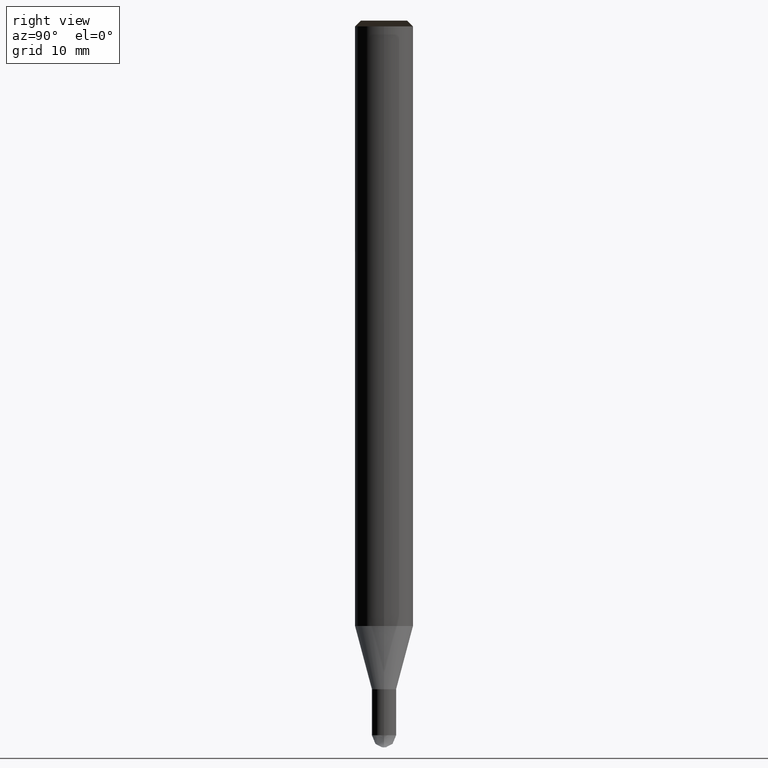
[diagram: clean part render]
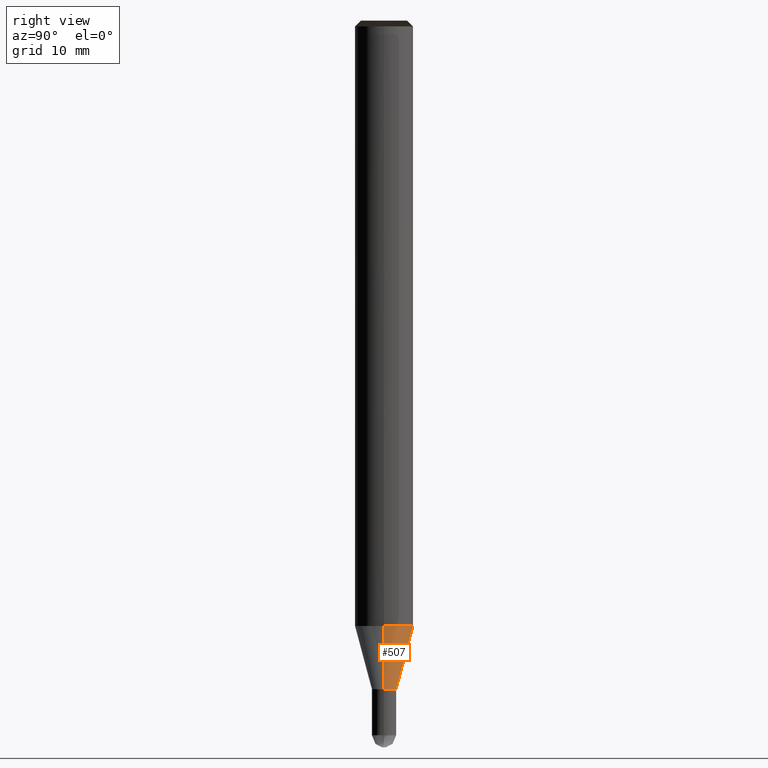
[diagram: same view with one face highlighted and labeled with its STEP entity id]
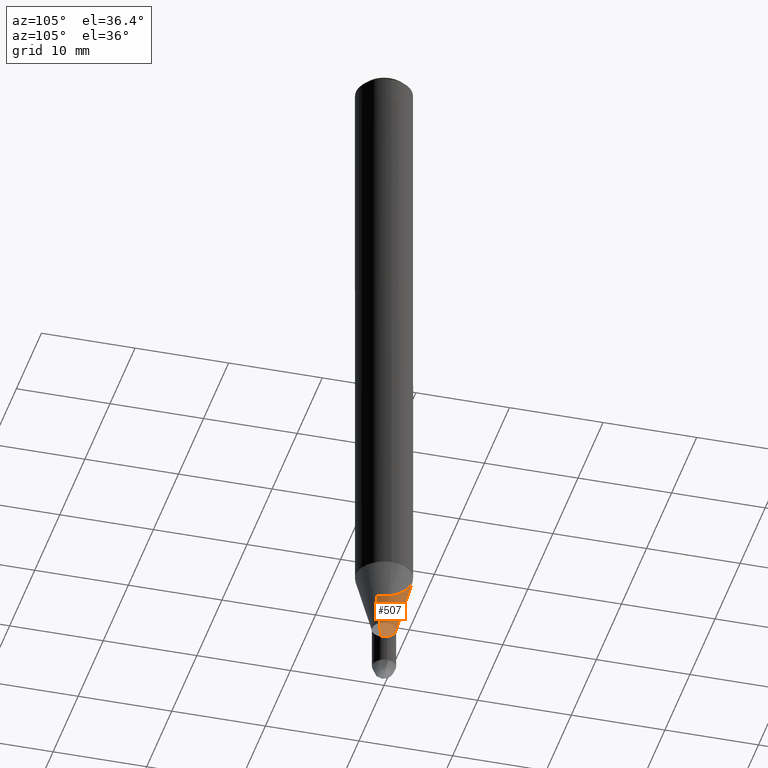
[diagram: same view with one face highlighted and labeled with its STEP entity id]
A machine part, right view. The second image highlights one B-rep face of the part: STEP entity #507.
A second angle (auxiliary view) of the same face is appended — the face is thin or edge-on in the first view.
In plain terms, the highlighted face is a freeform B-spline surface patch.
Its self-contained STEP definition (entity closure, byte-faithful):
#306=CARTESIAN_POINT('',(1.25,0.0,-6.531088913246));
#307=CARTESIAN_POINT('',(1.25,1.25,-6.531088913246));
#308=CARTESIAN_POINT('',(0.0,1.25,-6.531088913246));
#309=CARTESIAN_POINT('',(-1.25,1.25,-6.531088913246));
#310=CARTESIAN_POINT('',(-1.25,0.0,-6.531088913246));
#311=CARTESIAN_POINT('',(3.0,0.0,0.0));
#312=CARTESIAN_POINT('',(3.0,3.0,0.0));
#313=CARTESIAN_POINT('',(0.0,3.0,0.0));
#314=CARTESIAN_POINT('',(-3.0,3.0,0.0));
#315=CARTESIAN_POINT('',(-3.0,0.0,0.0));
#488=(
BOUNDED_SURFACE()
B_SPLINE_SURFACE(1,2,(
(#306,#307,#308,#309,#310),
(#311,#312,#313,#314,#315)
), .UNSPECIFIED.,.F.,.F.,.F.)
B_SPLINE_SURFACE_WITH_KNOTS((2,2),(3,2,3),(
0.0,1.0),(
0.0,0.5,1.0), .UNSPECIFIED.)
GEOMETRIC_REPRESENTATION_ITEM()
RATIONAL_B_SPLINE_SURFACE(((1.0,0.707106781187,1.0,0.707106781187,1.0),
(1.0,0.707106781187,1.0,0.707106781187,1.0)
))
REPRESENTATION_ITEM('')
SURFACE()
);
#489=(
BOUNDED_CURVE()
B_SPLINE_CURVE(2,(#311,#312,#313,#314,#315),.UNSPECIFIED.,.F.,.F.)
B_SPLINE_CURVE_WITH_KNOTS((3,2,3),
(0.0,0.5,1.0),.UNSPECIFIED.)
CURVE()
GEOMETRIC_REPRESENTATION_ITEM()
RATIONAL_B_SPLINE_CURVE((1.0,0.707106781187,1.0,0.707106781187,1.0))
REPRESENTATION_ITEM('')
);
#490=(
BOUNDED_CURVE()
B_SPLINE_CURVE(1,(#315,#310),.UNSPECIFIED.,.F.,.F.)
B_SPLINE_CURVE_WITH_KNOTS((2,2),
(0.0,1.0),.UNSPECIFIED.)
CURVE()
GEOMETRIC_REPRESENTATION_ITEM()
RATIONAL_B_SPLINE_CURVE((1.0,1.0))
REPRESENTATION_ITEM('')
);
#491=(
BOUNDED_CURVE()
B_SPLINE_CURVE(2,(#310,#309,#308,#307,#306),.UNSPECIFIED.,.F.,.F.)
B_SPLINE_CURVE_WITH_KNOTS((3,2,3),
(0.0,0.5,1.0),.UNSPECIFIED.)
CURVE()
GEOMETRIC_REPRESENTATION_ITEM()
RATIONAL_B_SPLINE_CURVE((1.0,0.707106781187,1.0,0.707106781187,1.0))
REPRESENTATION_ITEM('')
);
#492=(
BOUNDED_CURVE()
B_SPLINE_CURVE(1,(#306,#311),.UNSPECIFIED.,.F.,.F.)
B_SPLINE_CURVE_WITH_KNOTS((2,2),
(0.0,1.0),.UNSPECIFIED.)
CURVE()
GEOMETRIC_REPRESENTATION_ITEM()
RATIONAL_B_SPLINE_CURVE((1.0,1.0))
REPRESENTATION_ITEM('')
);
#493=VERTEX_POINT('',#306);
#494=VERTEX_POINT('',#310);
#495=VERTEX_POINT('',#311);
#496=VERTEX_POINT('',#315);
#497=EDGE_CURVE('',#495,#496,#489,.T.);
#498=EDGE_CURVE('',#496,#494,#490,.T.);
#499=EDGE_CURVE('',#494,#493,#491,.T.);
#500=EDGE_CURVE('',#493,#495,#492,.T.);
#501=ORIENTED_EDGE('',*,*,#497,.T.);
#502=ORIENTED_EDGE('',*,*,#498,.T.);
#503=ORIENTED_EDGE('',*,*,#499,.T.);
#504=ORIENTED_EDGE('',*,*,#500,.T.);
#505=EDGE_LOOP('',(#501,#502,#503,#504));
#506=FACE_OUTER_BOUND('',#505,.T.);
#507=ADVANCED_FACE('',(#506),#488,.T.);